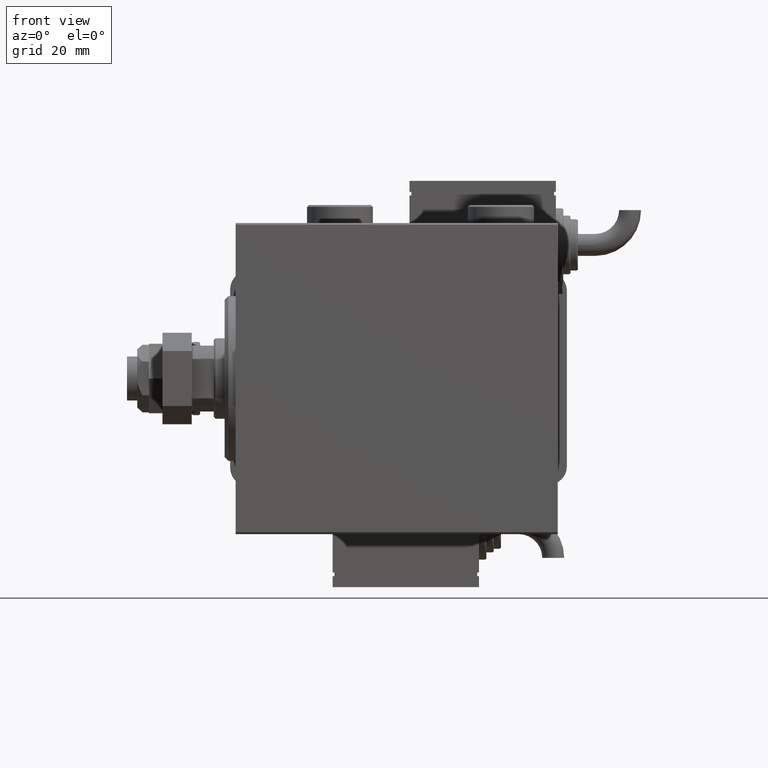
[diagram: clean part render]
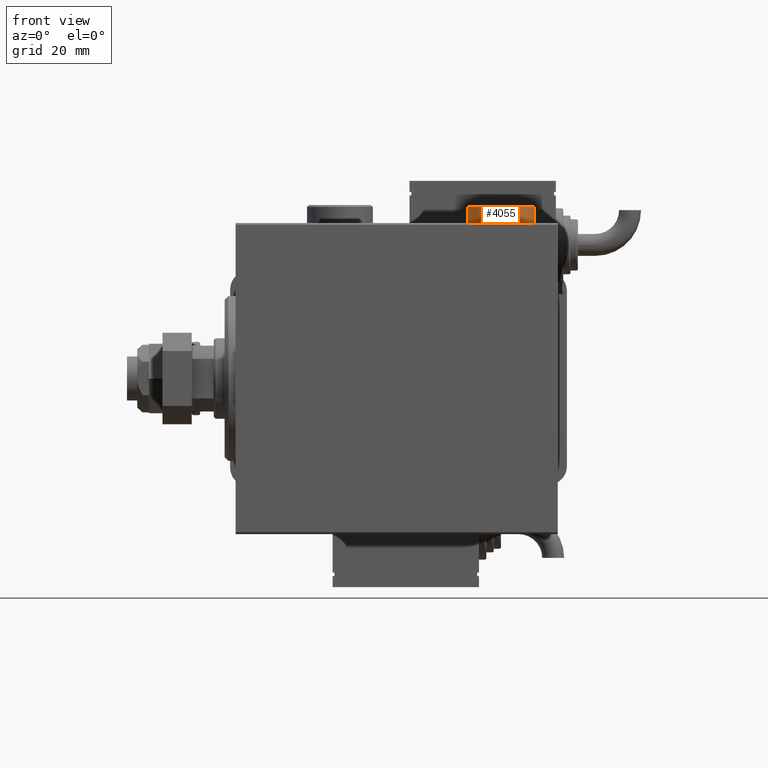
[diagram: same view with one face highlighted and labeled with its STEP entity id]
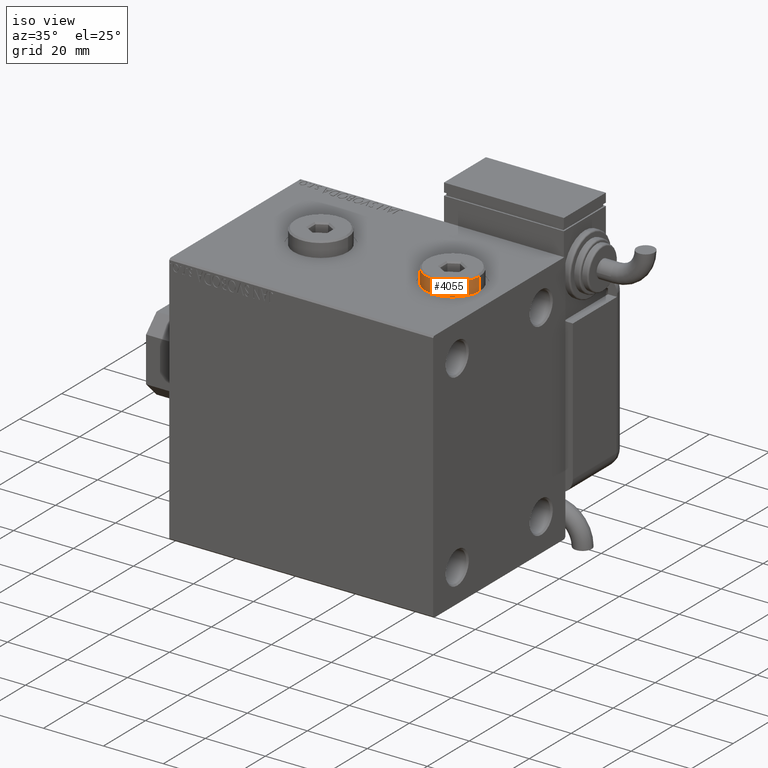
[diagram: same view with one face highlighted and labeled with its STEP entity id]
A machine part, front view. The second image highlights one B-rep face of the part: STEP entity #4055.
A second angle (iso view) of the same face is appended — the face is thin or edge-on in the first view.
In plain terms, the highlighted cylindrical surface (edge-blend (fillet) strip) has radius 9 mm, axis along (-0, -0, -1).
Its self-contained STEP definition (entity closure, byte-faithful):
#1804 = VECTOR ( 'NONE', #24483, 1000.000000000000000 ) ;
#2785 = AXIS2_PLACEMENT_3D ( 'NONE', #19056, #37976, #38278 ) ;
#3368 = VERTEX_POINT ( 'NONE', #13953 ) ;
#3947 = AXIS2_PLACEMENT_3D ( 'NONE', #37116, #23167, #38027 ) ;
#4055 = ADVANCED_FACE ( 'NONE', ( #49595 ), #21072, .T. ) ;
#4175 = EDGE_CURVE ( 'NONE', #43720, #30322, #27873, .T. ) ;
#5561 = LINE ( 'NONE', #37525, #1804 ) ;
#10556 = ORIENTED_EDGE ( 'NONE', *, *, #31244, .T. ) ;
#12056 = DIRECTION ( 'NONE',  ( -1.000000000000000000, 0.000000000000000000, 0.000000000000000000 ) ) ;
#13953 = CARTESIAN_POINT ( 'NONE',  ( 9.000000000000001776, 1.102182119232617911E-15, 4.500000000000006217 ) ) ;
#19056 = CARTESIAN_POINT ( 'NONE',  ( 0.000000000000000000, 0.000000000000000000, 0.000000000000000000 ) ) ;
#19217 = AXIS2_PLACEMENT_3D ( 'NONE', #54872, #39983, #12056 ) ;
#21072 = CYLINDRICAL_SURFACE ( 'NONE', #19217, 9.000000000000001776 ) ;
#22019 = VERTEX_POINT ( 'NONE', #37350 ) ;
#23167 = DIRECTION ( 'NONE',  ( 0.000000000000000000, 0.000000000000000000, -1.000000000000000000 ) ) ;
#24295 = EDGE_CURVE ( 'NONE', #30322, #22019, #57255, .T. ) ;
#24483 = DIRECTION ( 'NONE',  ( -0.000000000000000000, -0.000000000000000000, -1.000000000000000000 ) ) ;
#24778 = EDGE_CURVE ( 'NONE', #3368, #22019, #5561, .T. ) ;
#27873 = LINE ( 'NONE', #46184, #42938 ) ;
#30322 = VERTEX_POINT ( 'NONE', #40180 ) ;
#31244 = EDGE_CURVE ( 'NONE', #3368, #43720, #55426, .T. ) ;
#37116 = CARTESIAN_POINT ( 'NONE',  ( 0.000000000000000000, 0.000000000000000000, 4.500000000000006217 ) ) ;
#37350 = CARTESIAN_POINT ( 'NONE',  ( 9.000000000000001776, 1.102182119232617911E-15, 0.000000000000000000 ) ) ;
#37525 = CARTESIAN_POINT ( 'NONE',  ( 9.000000000000001776, 1.102182119232617911E-15, 5.000000000000000000 ) ) ;
#37976 = DIRECTION ( 'NONE',  ( 0.000000000000000000, 0.000000000000000000, 1.000000000000000000 ) ) ;
#38027 = DIRECTION ( 'NONE',  ( 1.000000000000000000, 0.000000000000000000, 0.000000000000000000 ) ) ;
#38278 = DIRECTION ( 'NONE',  ( 1.000000000000000000, 0.000000000000000000, 0.000000000000000000 ) ) ;
#39983 = DIRECTION ( 'NONE',  ( -0.000000000000000000, -0.000000000000000000, -1.000000000000000000 ) ) ;
#40180 = CARTESIAN_POINT ( 'NONE',  ( -9.000000000000001776, 0.000000000000000000, 0.000000000000000000 ) ) ;
#42938 = VECTOR ( 'NONE', #56114, 1000.000000000000000 ) ;
#43409 = EDGE_LOOP ( 'NONE', ( #60784, #10556, #50652, #49973 ) ) ;
#43720 = VERTEX_POINT ( 'NONE', #49604 ) ;
#46184 = CARTESIAN_POINT ( 'NONE',  ( -9.000000000000001776, 0.000000000000000000, 5.000000000000000000 ) ) ;
#49595 = FACE_OUTER_BOUND ( 'NONE', #43409, .T. ) ;
#49604 = CARTESIAN_POINT ( 'NONE',  ( -9.000000000000001776, 0.000000000000000000, 4.500000000000006217 ) ) ;
#49973 = ORIENTED_EDGE ( 'NONE', *, *, #24295, .T. ) ;
#50652 = ORIENTED_EDGE ( 'NONE', *, *, #4175, .T. ) ;
#54872 = CARTESIAN_POINT ( 'NONE',  ( 0.000000000000000000, 0.000000000000000000, 5.000000000000000000 ) ) ;
#55426 = CIRCLE ( 'NONE', #3947, 9.000000000000001776 ) ;
#56114 = DIRECTION ( 'NONE',  ( -0.000000000000000000, -0.000000000000000000, -1.000000000000000000 ) ) ;
#57255 = CIRCLE ( 'NONE', #2785, 9.000000000000001776 ) ;
#60784 = ORIENTED_EDGE ( 'NONE', *, *, #24778, .F. ) ;